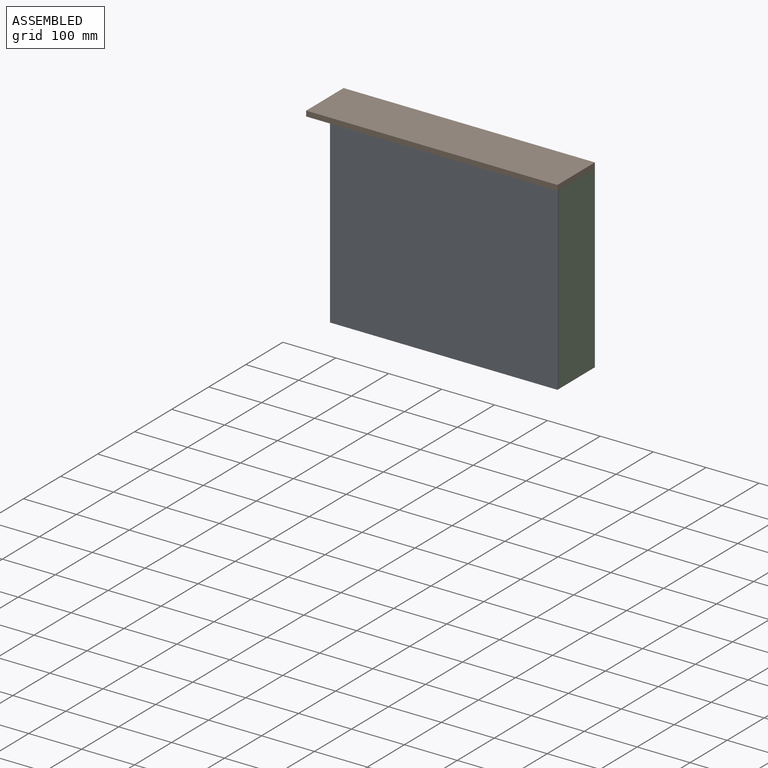
[diagram: assembled view]
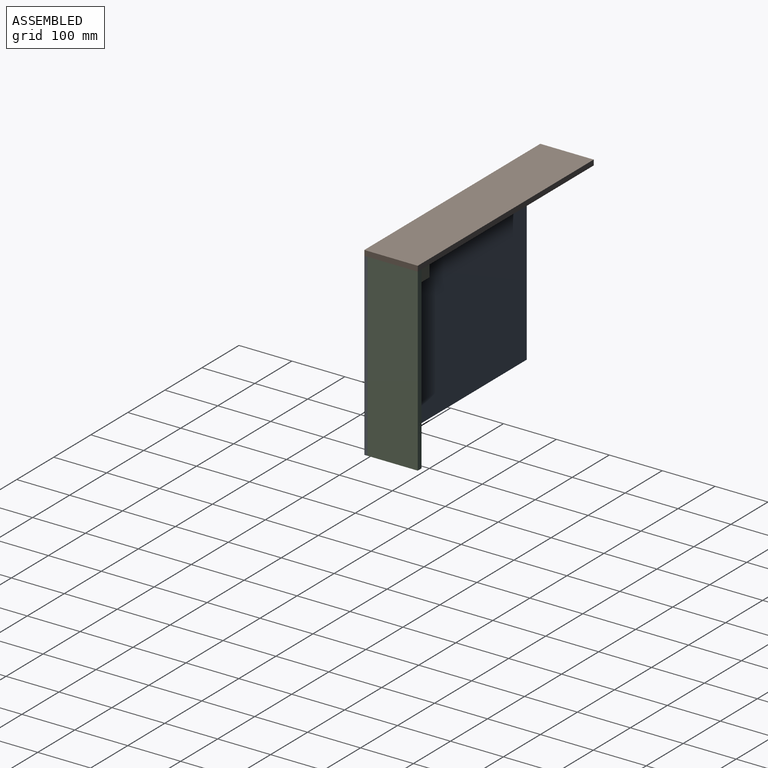
[diagram: assembled view, second angle]
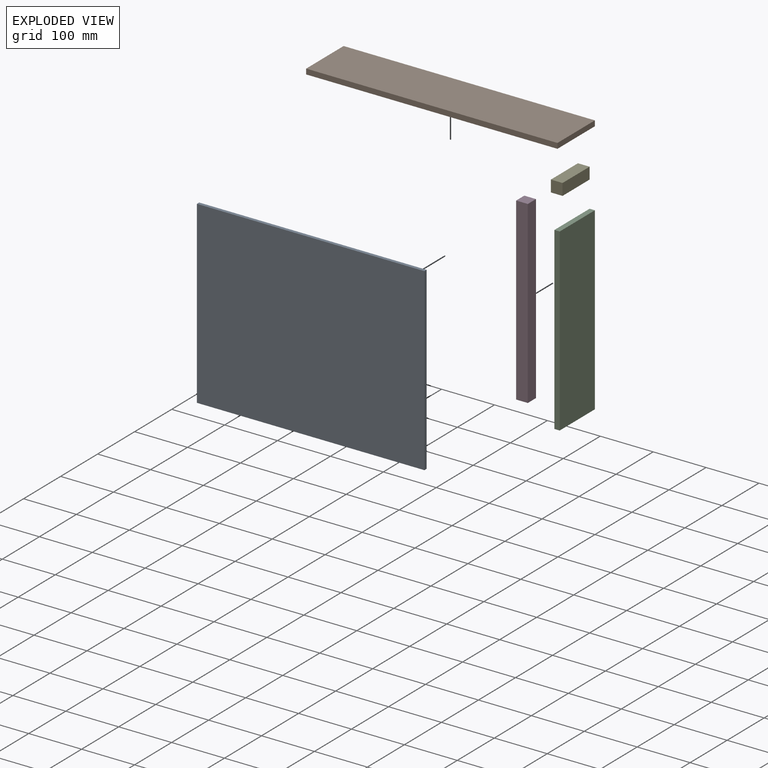
[diagram: exploded view]
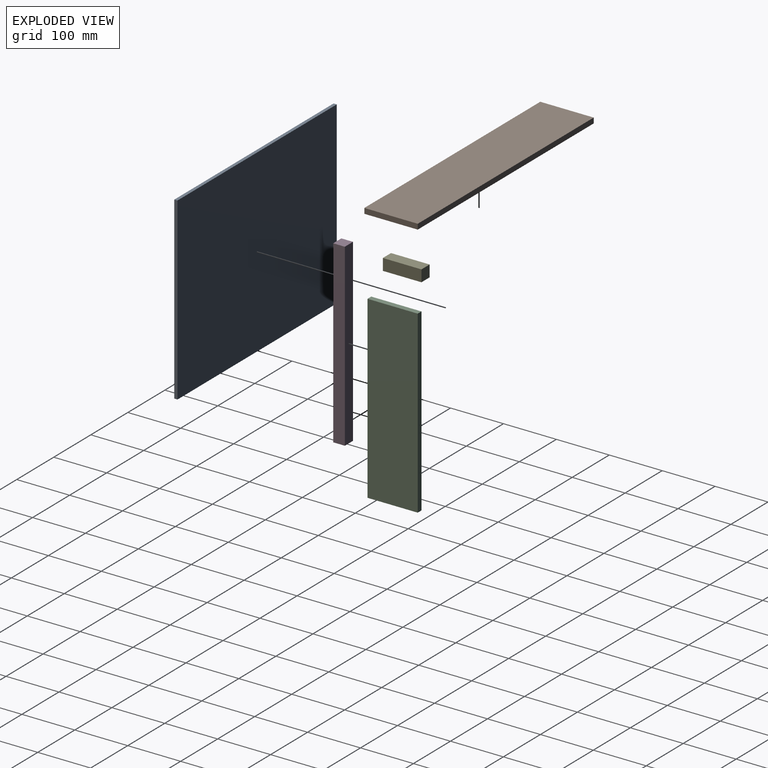
[diagram: exploded view, second angle]
ASSEMBLY  parts=5 mates=4
PART A: 6 faces, bbox 430x6x340 mm
  f0: plane 430x6mm, normal (0,0,1), area 2580mm2, adj f1,f3,f4,f5
  f1: plane 340x6mm, normal (-1,0,0), area 2040mm2, adj f0,f2,f4,f5
  f2: plane 430x6mm, normal (0,0,-1), area 2580mm2, adj f1,f3,f4,f5
  f3: plane 340x6mm, normal (1,0,0), area 2040mm2, adj f0,f2,f4,f5
  f4: plane 430x340mm, normal (0,-1,0), area 146200mm2, adj f0,f1,f2,f3
  f5: plane 430x340mm, normal (0,1,0), area 146200mm2, adj f0,f1,f2,f3
PART B: 6 faces, bbox 475x101x10 mm
  f0: plane 475x10mm, normal (0,1,0), area 4750mm2, adj f1,f3,f4,f5
  f1: plane 101x10mm, normal (-1,0,0), area 1010mm2, adj f0,f2,f4,f5
  f2: plane 475x10mm, normal (0,-1,0), area 4750mm2, adj f1,f3,f4,f5
  f3: plane 101x10mm, normal (1,0,0), area 1010mm2, adj f0,f2,f4,f5
  f4: plane 475x101mm, normal (0,0,-1), area 47975mm2, adj f0,f1,f2,f3
  f5: plane 475x101mm, normal (0,0,1), area 47975mm2, adj f0,f1,f2,f3
PART C: 6 faces, bbox 10x95x340 mm
  f0: plane 95x10mm, normal (0,0,1), area 950mm2, adj f1,f3,f4,f5
  f1: plane 340x10mm, normal (0,-1,0), area 3400mm2, adj f0,f2,f4,f5
  f2: plane 95x10mm, normal (0,0,-1), area 950mm2, adj f1,f3,f4,f5
  f3: plane 340x10mm, normal (0,1,0), area 3400mm2, adj f0,f2,f4,f5
  f4: plane 340x95mm, normal (-1,0,0), area 32300mm2, adj f0,f1,f2,f3
  f5: plane 340x95mm, normal (1,0,0), area 32300mm2, adj f0,f1,f2,f3
PART D: 6 faces, bbox 22x22x340 mm
  f0: plane 22x22mm, normal (0,0,1), area 484mm2, adj f1,f3,f4,f5
  f1: plane 340x22mm, normal (0,-1,0), area 7480mm2, adj f0,f2,f4,f5
  f2: plane 22x22mm, normal (0,0,-1), area 484mm2, adj f1,f3,f4,f5
  f3: plane 340x22mm, normal (0,1,0), area 7480mm2, adj f0,f2,f4,f5
  f4: plane 340x22mm, normal (-1,0,0), area 7480mm2, adj f0,f1,f2,f3
  f5: plane 340x22mm, normal (1,0,0), area 7480mm2, adj f0,f1,f2,f3
PART E: 6 faces, bbox 22x73x22 mm
  f0: plane 73x22mm, normal (0,0,1), area 1606mm2, adj f1,f3,f4,f5
  f1: plane 73x22mm, normal (-1,0,0), area 1606mm2, adj f0,f2,f4,f5
  f2: plane 73x22mm, normal (0,0,-1), area 1606mm2, adj f1,f3,f4,f5
  f3: plane 73x22mm, normal (1,0,0), area 1606mm2, adj f0,f2,f4,f5
  f4: plane 22x22mm, normal (0,1,0), area 484mm2, adj f0,f1,f2,f3
  f5: plane 22x22mm, normal (0,-1,0), area 484mm2, adj f0,f1,f2,f3
PLACE A t=(-210.34,-264.61,28.48)mm fixed
PLACE B t=(-240.2,-211.71,192.66)mm
PLACE C t=(-11.24,-264.61,57.46)mm
PLACE D t=(-21.24,-264.61,57.46)mm
PLACE E t=(-43.24,-242.61,182.66)mm
MATE fastened E.f0 <-> D.f0  axis (0,0,1) through (-21.24,-242.61,182.66)mm
MATE fastened A.f4 <-> B.f2  axis (0,-1,0) through (-11.24,-270.61,182.66)mm
MATE fastened C.f0 <-> B.f4  axis (0,0,1) through (-11.24,-169.61,182.66)mm
MATE fastened D.f0 <-> C.f0  axis (0,0,1) through (-21.24,-264.61,182.66)mm
